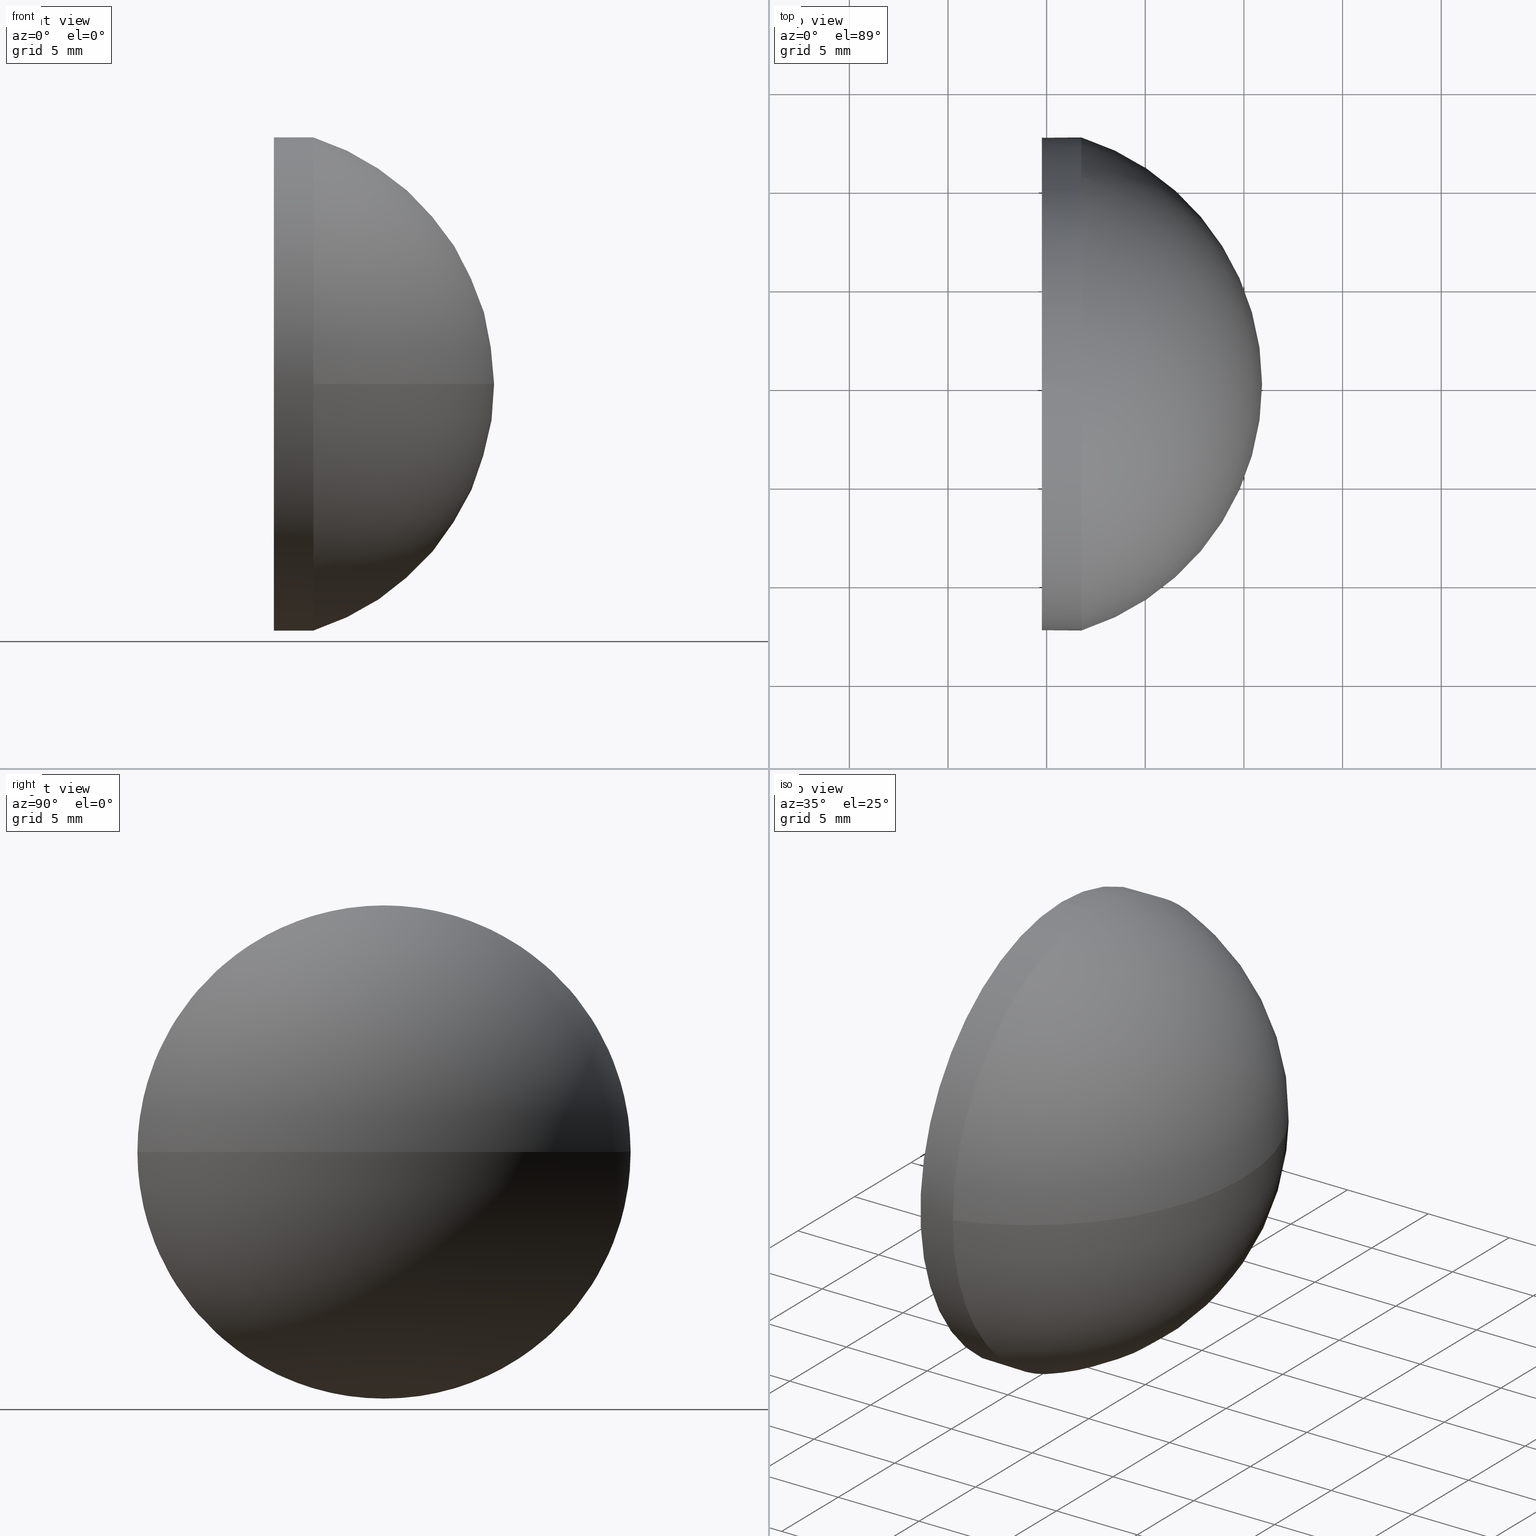
[diagram: canonical four-view strip — front | top / right | iso, engineering-drawing reading convention]
A machine part, canonical four-view strip (front | top / right | iso — engineering-drawing reading convention). The complete STEP part file that produces these views, byte-faithful:
ISO-10303-21;
HEADER;
FILE_DESCRIPTION (( 'STEP AP214' ),
    '1' );
FILE_NAME ('100208.STEP',
    '2019-05-23T06:54:28',
    ( '' ),
    ( '' ),
    'SwSTEP 2.0',
    'SolidWorks 2016',
    '' );
FILE_SCHEMA (( 'AUTOMOTIVE_DESIGN' ));
ENDSEC;

DATA;
#1 = AXIS2_PLACEMENT_3D ( 'NONE', #102, #101, #28 ) ;
#2 = CIRCLE ( 'NONE', #84, 13.10893013100433700 ) ;
#3 = ORIENTED_EDGE ( 'NONE', *, *, #18, .F. ) ;
#4 = ORIENTED_EDGE ( 'NONE', *, *, #62, .T. ) ;
#5 = CARTESIAN_POINT ( 'NONE',  ( 507.8113059585240900, 5.104111790186718300, 0.0000000000000000000 ) ) ;
#6 = AXIS2_PLACEMENT_3D ( 'NONE', #166, #80, #110 ) ;
#7 = EDGE_LOOP ( 'NONE', ( #185, #114, #81, #69 ) ) ;
#8 = CARTESIAN_POINT ( 'NONE',  ( 511.7602360895284600, 5.104111790186721000, 0.0000000000000000000 ) ) ;
#9 = FILL_AREA_STYLE ('',( #106 ) ) ;
#10 = SURFACE_SIDE_STYLE ('',( #24 ) ) ;
#11 = ORIENTED_EDGE ( 'NONE', *, *, #85, .T. ) ;
#12 = AXIS2_PLACEMENT_3D ( 'NONE', #63, #108, #20 ) ;
#13 = VERTEX_POINT ( 'NONE', #160 ) ;
#14 = AXIS2_PLACEMENT_3D ( 'NONE', #72, #105, #71 ) ;
#15 = PRESENTATION_LAYER_ASSIGNMENT (  '', '', ( #36 ) ) ;
#16 = CARTESIAN_POINT ( 'NONE',  ( 507.7311285110914700, 5.104111790186721000, 0.0000000000000000000 ) ) ;
#17 = DIRECTION ( 'NONE',  ( 0.0000000000000000000, 0.0000000000000000000, 1.000000000000000000 ) ) ;
#18 = EDGE_CURVE ( 'NONE', #48, #75, #171, .T. ) ;
#19 = DIRECTION ( 'NONE',  ( -1.000000000000000000, -0.0000000000000000000, -0.0000000000000000000 ) ) ;
#20 = DIRECTION ( 'NONE',  ( 1.000000000000000000, 0.0000000000000000000, 0.0000000000000000000 ) ) ;
#21 = CARTESIAN_POINT ( 'NONE',  ( 507.7311285110914700, 5.104111790186722800, -12.49999999999999800 ) ) ;
#22 = PRESENTATION_LAYER_ASSIGNMENT (  '', '', ( #159 ) ) ;
#23 = CIRCLE ( 'NONE', #98, 12.49999999999999800 ) ;
#24 = SURFACE_STYLE_FILL_AREA ( #9 ) ;
#25 = AXIS2_PLACEMENT_3D ( 'NONE', #178, #19, #17 ) ;
#26 = DIRECTION ( 'NONE',  ( -1.000000000000000000, -0.0000000000000000000, -0.0000000000000000000 ) ) ;
#27 = DIRECTION ( 'NONE',  ( -1.000000000000000000, -0.0000000000000000000, -0.0000000000000000000 ) ) ;
#28 = DIRECTION ( 'NONE',  ( 0.0000000000000000000, 0.0000000000000000000, 1.000000000000000000 ) ) ;
#29 = CARTESIAN_POINT ( 'NONE',  ( 520.9202360895284300, 5.104111790186719200, 0.0000000000000000000 ) ) ;
#30 = DIRECTION ( 'NONE',  ( 0.0000000000000000000, 0.0000000000000000000, 1.000000000000000000 ) ) ;
#31 = FACE_OUTER_BOUND ( 'NONE', #107, .T. ) ;
#32 = FILL_AREA_STYLE_COLOUR ( '', #79 ) ;
#33 = DIRECTION ( 'NONE',  ( 0.0000000000000000000, 0.0000000000000000000, 1.000000000000000000 ) ) ;
#34 = ORIENTED_EDGE ( 'NONE', *, *, #184, .T. ) ;
#35 = EDGE_LOOP ( 'NONE', ( #95, #158, #82, #11, #111 ) ) ;
#36 = STYLED_ITEM ( 'NONE', ( #127 ), #112 ) ;
#37 = VERTEX_POINT ( 'NONE', #29 ) ;
#38 = ADVANCED_FACE ( 'NONE', ( #92 ), #88, .F. ) ;
#39 = DIRECTION ( 'NONE',  ( 0.0000000000000000000, 0.0000000000000000000, -1.000000000000000000 ) ) ;
#40 = ADVANCED_FACE ( 'NONE', ( #147 ), #66, .T. ) ;
#41 = ORIENTED_EDGE ( 'NONE', *, *, #77, .F. ) ;
#42 = CARTESIAN_POINT ( 'NONE',  ( 511.7602360895284600, 5.104111790186722800, -12.49999999999999800 ) ) ;
#43 = CIRCLE ( 'NONE', #173, 12.49999999999999800 ) ;
#44 = DIRECTION ( 'NONE',  ( 1.000000000000000000, 0.0000000000000000000, 0.0000000000000000000 ) ) ;
#45 =( NAMED_UNIT ( * ) SI_UNIT ( $, .STERADIAN. ) SOLID_ANGLE_UNIT ( ) );
#46 = DIRECTION ( 'NONE',  ( -1.000000000000000000, -0.0000000000000000000, -0.0000000000000000000 ) ) ;
#47 = DIRECTION ( 'NONE',  ( -1.000000000000000000, -0.0000000000000000000, -0.0000000000000000000 ) ) ;
#48 = VERTEX_POINT ( 'NONE', #42 ) ;
#49 = CARTESIAN_POINT ( 'NONE',  ( 511.7602360895284600, 17.60411179018671000, 0.0000000000000000000 ) ) ;
#50 = FACE_OUTER_BOUND ( 'NONE', #35, .T. ) ;
#51 = CYLINDRICAL_SURFACE ( 'NONE', #67, 12.49999999999999800 ) ;
#52 = CIRCLE ( 'NONE', #96, 12.49999999999999800 ) ;
#53 = VECTOR ( 'NONE', #26, 1000.000000000000000 ) ;
#54 = ADVANCED_FACE ( 'NONE', ( #31 ), #117, .T. ) ;
#55 = DIRECTION ( 'NONE',  ( -0.0000000000000000000, 0.0000000000000000000, -1.000000000000000000 ) ) ;
#56 = DIRECTION ( 'NONE',  ( 0.0000000000000000000, 0.0000000000000000000, 1.000000000000000000 ) ) ;
#57 =( GEOMETRIC_REPRESENTATION_CONTEXT ( 3 ) GLOBAL_UNCERTAINTY_ASSIGNED_CONTEXT ( ( #83 ) ) GLOBAL_UNIT_ASSIGNED_CONTEXT ( ( #120, #138, #179 ) ) REPRESENTATION_CONTEXT ( 'NONE', 'WORKASPACE' ) );
#58 =( LENGTH_UNIT ( ) NAMED_UNIT ( * ) SI_UNIT ( .MILLI., .METRE. ) );
#59 = APPLICATION_CONTEXT ( 'automotive_design' ) ;
#60 = ORIENTED_EDGE ( 'NONE', *, *, #157, .T. ) ;
#61 = APPLICATION_CONTEXT ( 'automotive_design' ) ;
#62 = EDGE_CURVE ( 'NONE', #86, #176, #123, .T. ) ;
#63 = CARTESIAN_POINT ( 'NONE',  ( 0.0000000000000000000, 0.0000000000000000000, 0.0000000000000000000 ) ) ;
#64 = AXIS2_PLACEMENT_3D ( 'NONE', #94, #181, #118 ) ;
#65 = SHAPE_DEFINITION_REPRESENTATION ( #109, #112 ) ;
#66 = SPHERICAL_SURFACE ( 'NONE', #141, 13.10893013100435700 ) ;
#67 = AXIS2_PLACEMENT_3D ( 'NONE', #16, #27, #56 ) ;
#68 = CYLINDRICAL_SURFACE ( 'NONE', #64, 12.49999999999999800 ) ;
#69 = ORIENTED_EDGE ( 'NONE', *, *, #115, .F. ) ;
#70 = PRODUCT_RELATED_PRODUCT_CATEGORY ( 'part', '', ( #133 ) ) ;
#71 = DIRECTION ( 'NONE',  ( 0.0000000000000000000, 1.000000000000000000, 0.0000000000000000000 ) ) ;
#72 = CARTESIAN_POINT ( 'NONE',  ( 507.8113059585240900, 5.104111790186718300, 0.0000000000000000000 ) ) ;
#73 =( GEOMETRIC_REPRESENTATION_CONTEXT ( 3 ) GLOBAL_UNCERTAINTY_ASSIGNED_CONTEXT ( ( #126 ) ) GLOBAL_UNIT_ASSIGNED_CONTEXT ( ( #58, #74, #45 ) ) REPRESENTATION_CONTEXT ( 'NONE', 'WORKASPACE' ) );
#74 =( NAMED_UNIT ( * ) PLANE_ANGLE_UNIT ( ) SI_UNIT ( $, .RADIAN. ) );
#75 = VERTEX_POINT ( 'NONE', #132 ) ;
#76 = APPLICATION_PROTOCOL_DEFINITION ( 'draft international standard', 'automotive_design', 1998, #59 ) ;
#77 = EDGE_CURVE ( 'NONE', #125, #48, #23, .T. ) ;
#78 = FILL_AREA_STYLE ('',( #32 ) ) ;
#79 = COLOUR_RGB ( '',1.000000000000000000, 1.000000000000000000, 1.000000000000000000 ) ;
#80 = DIRECTION ( 'NONE',  ( 0.0000000000000000000, 1.224646799147353200E-016, -1.000000000000000000 ) ) ;
#81 = ORIENTED_EDGE ( 'NONE', *, *, #136, .F. ) ;
#82 = ORIENTED_EDGE ( 'NONE', *, *, #115, .T. ) ;
#83 = UNCERTAINTY_MEASURE_WITH_UNIT (LENGTH_MEASURE( 1.000000000000000100E-005 ), #120, 'distance_accuracy_value', 'NONE');
#84 = AXIS2_PLACEMENT_3D ( 'NONE', #183, #93, #44 ) ;
#85 = EDGE_CURVE ( 'NONE', #13, #86, #135, .T. ) ;
#86 = VERTEX_POINT ( 'NONE', #89 ) ;
#87 = DIRECTION ( 'NONE',  ( 1.000000000000000000, 0.0000000000000000000, 0.0000000000000000000 ) ) ;
#88 = PLANE ( 'NONE',  #124 ) ;
#89 = CARTESIAN_POINT ( 'NONE',  ( 509.7602360895284600, 5.104111790186721000, 12.49999999999999800 ) ) ;
#90 = PRESENTATION_STYLE_ASSIGNMENT (( #134 ) ) ;
#91 =( NAMED_UNIT ( * ) SI_UNIT ( $, .STERADIAN. ) SOLID_ANGLE_UNIT ( ) );
#92 = FACE_OUTER_BOUND ( 'NONE', #140, .T. ) ;
#93 = DIRECTION ( 'NONE',  ( -0.0000000000000000000, 0.0000000000000000000, 1.000000000000000000 ) ) ;
#94 = CARTESIAN_POINT ( 'NONE',  ( 507.7311285110914700, 5.104111790186721000, 0.0000000000000000000 ) ) ;
#95 = ORIENTED_EDGE ( 'NONE', *, *, #170, .F. ) ;
#96 = AXIS2_PLACEMENT_3D ( 'NONE', #163, #47, #30 ) ;
#97 = PRODUCT_DEFINITION_FORMATION_WITH_SPECIFIED_SOURCE ( '�κ�', '', #133, .NOT_KNOWN. ) ;
#98 = AXIS2_PLACEMENT_3D ( 'NONE', #130, #116, #161 ) ;
#99 = ORIENTED_EDGE ( 'NONE', *, *, #62, .F. ) ;
#100 = FACE_OUTER_BOUND ( 'NONE', #129, .T. ) ;
#101 = DIRECTION ( 'NONE',  ( -1.000000000000000000, -0.0000000000000000000, -0.0000000000000000000 ) ) ;
#102 = CARTESIAN_POINT ( 'NONE',  ( 511.7602360895284600, 5.104111790186721000, 0.0000000000000000000 ) ) ;
#103 = ADVANCED_FACE ( 'NONE', ( #100 ), #51, .T. ) ;
#104 = CARTESIAN_POINT ( 'NONE',  ( 507.7311285110914700, 5.104111790186721000, 12.49999999999999800 ) ) ;
#105 = DIRECTION ( 'NONE',  ( -0.0000000000000000000, 0.0000000000000000000, -1.000000000000000000 ) ) ;
#106 = FILL_AREA_STYLE_COLOUR ( '', #174 ) ;
#107 = EDGE_LOOP ( 'NONE', ( #162, #34, #3, #41 ) ) ;
#108 = DIRECTION ( 'NONE',  ( 0.0000000000000000000, 0.0000000000000000000, 1.000000000000000000 ) ) ;
#109 = PRODUCT_DEFINITION_SHAPE ( 'NONE', 'NONE',  #154 ) ;
#110 = DIRECTION ( 'NONE',  ( 0.0000000000000000000, 1.000000000000000000, 1.224646799147353200E-016 ) ) ;
#111 = ORIENTED_EDGE ( 'NONE', *, *, #157, .F. ) ;
#112 = ADVANCED_BREP_SHAPE_REPRESENTATION ( '100208', ( #142, #12 ), #131 ) ;
#113 = SURFACE_STYLE_FILL_AREA ( #78 ) ;
#114 = ORIENTED_EDGE ( 'NONE', *, *, #145, .T. ) ;
#115 = EDGE_CURVE ( 'NONE', #75, #13, #128, .T. ) ;
#116 = DIRECTION ( 'NONE',  ( -1.000000000000000000, -0.0000000000000000000, -0.0000000000000000000 ) ) ;
#117 = SPHERICAL_SURFACE ( 'NONE', #14, 13.10893013100435700 ) ;
#118 = DIRECTION ( 'NONE',  ( 0.0000000000000000000, 0.0000000000000000000, 1.000000000000000000 ) ) ;
#119 = PRODUCT_CONTEXT ( 'NONE', #59, 'mechanical' ) ;
#120 =( LENGTH_UNIT ( ) NAMED_UNIT ( * ) SI_UNIT ( .MILLI., .METRE. ) );
#121 = CARTESIAN_POINT ( 'NONE',  ( 509.7602360895284600, 5.104111790186722800, -12.49999999999999800 ) ) ;
#122 = PRODUCT_DEFINITION_CONTEXT ( 'detailed design', #61, 'design' ) ;
#123 = CIRCLE ( 'NONE', #25, 12.49999999999999800 ) ;
#124 = AXIS2_PLACEMENT_3D ( 'NONE', #177, #87, #39 ) ;
#125 = VERTEX_POINT ( 'NONE', #49 ) ;
#126 = UNCERTAINTY_MEASURE_WITH_UNIT (LENGTH_MEASURE( 1.000000000000000100E-005 ), #58, 'distance_accuracy_value', 'NONE');
#127 = PRESENTATION_STYLE_ASSIGNMENT (( #150 ) ) ;
#128 = CIRCLE ( 'NONE', #172, 12.49999999999999800 ) ;
#129 = EDGE_LOOP ( 'NONE', ( #155, #180, #99, #165, #153 ) ) ;
#130 = CARTESIAN_POINT ( 'NONE',  ( 511.7602360895284600, 5.104111790186721000, 0.0000000000000000000 ) ) ;
#131 =( GEOMETRIC_REPRESENTATION_CONTEXT ( 3 ) GLOBAL_UNCERTAINTY_ASSIGNED_CONTEXT ( ( #156 ) ) GLOBAL_UNIT_ASSIGNED_CONTEXT ( ( #148, #146, #91 ) ) REPRESENTATION_CONTEXT ( 'NONE', 'WORKASPACE' ) );
#132 = CARTESIAN_POINT ( 'NONE',  ( 511.7602360895284600, -7.395888209813271000, -1.530808498934190100E-015 ) ) ;
#133 = PRODUCT ( '100208', '100208', '', ( #119 ) ) ;
#134 = SURFACE_STYLE_USAGE ( .BOTH. , #152 ) ;
#135 = LINE ( 'NONE', #104, #53 ) ;
#136 = EDGE_CURVE ( 'NONE', #13, #125, #43, .T. ) ;
#137 = DIRECTION ( 'NONE',  ( -1.000000000000000000, -0.0000000000000000000, -0.0000000000000000000 ) ) ;
#138 =( NAMED_UNIT ( * ) PLANE_ANGLE_UNIT ( ) SI_UNIT ( $, .RADIAN. ) );
#139 = CLOSED_SHELL ( 'NONE', ( #103, #54, #40, #149, #38 ) ) ;
#140 = EDGE_LOOP ( 'NONE', ( #4, #60 ) ) ;
#141 = AXIS2_PLACEMENT_3D ( 'NONE', #5, #55, #144 ) ;
#142 = MANIFOLD_SOLID_BREP ( '��ת1', #139 ) ;
#143 = CIRCLE ( 'NONE', #6, 13.10893013100435500 ) ;
#144 = DIRECTION ( 'NONE',  ( 0.0000000000000000000, 1.000000000000000000, 0.0000000000000000000 ) ) ;
#145 = EDGE_CURVE ( 'NONE', #37, #125, #2, .T. ) ;
#146 =( NAMED_UNIT ( * ) PLANE_ANGLE_UNIT ( ) SI_UNIT ( $, .RADIAN. ) );
#147 = FACE_OUTER_BOUND ( 'NONE', #7, .T. ) ;
#148 =( LENGTH_UNIT ( ) NAMED_UNIT ( * ) SI_UNIT ( .MILLI., .METRE. ) );
#149 = ADVANCED_FACE ( 'NONE', ( #50 ), #68, .T. ) ;
#150 = SURFACE_STYLE_USAGE ( .BOTH. , #10 ) ;
#151 = CARTESIAN_POINT ( 'NONE',  ( 511.7602360895284600, 5.104111790186721000, 0.0000000000000000000 ) ) ;
#152 = SURFACE_SIDE_STYLE ('',( #113 ) ) ;
#153 = ORIENTED_EDGE ( 'NONE', *, *, #136, .T. ) ;
#154 = PRODUCT_DEFINITION ( 'δ֪', '', #97, #122 ) ;
#155 = ORIENTED_EDGE ( 'NONE', *, *, #77, .T. ) ;
#156 = UNCERTAINTY_MEASURE_WITH_UNIT (LENGTH_MEASURE( 1.000000000000000100E-005 ), #148, 'distance_accuracy_value', 'NONE');
#157 = EDGE_CURVE ( 'NONE', #176, #86, #52, .T. ) ;
#158 = ORIENTED_EDGE ( 'NONE', *, *, #18, .T. ) ;
#159 = STYLED_ITEM ( 'NONE', ( #90 ), #142 ) ;
#160 = CARTESIAN_POINT ( 'NONE',  ( 511.7602360895284600, 5.104111790186721000, 12.49999999999999800 ) ) ;
#161 = DIRECTION ( 'NONE',  ( 0.0000000000000000000, 0.0000000000000000000, 1.000000000000000000 ) ) ;
#162 = ORIENTED_EDGE ( 'NONE', *, *, #145, .F. ) ;
#163 = CARTESIAN_POINT ( 'NONE',  ( 509.7602360895284600, 5.104111790186721000, 0.0000000000000000000 ) ) ;
#164 = MECHANICAL_DESIGN_GEOMETRIC_PRESENTATION_REPRESENTATION (  '', ( #36 ), #57 ) ;
#165 = ORIENTED_EDGE ( 'NONE', *, *, #85, .F. ) ;
#166 = CARTESIAN_POINT ( 'NONE',  ( 507.8113059585240900, 5.104111790186718300, 0.0000000000000000000 ) ) ;
#167 = DIRECTION ( 'NONE',  ( 0.0000000000000000000, 0.0000000000000000000, 1.000000000000000000 ) ) ;
#168 = MECHANICAL_DESIGN_GEOMETRIC_PRESENTATION_REPRESENTATION (  '', ( #159 ), #73 ) ;
#169 = LINE ( 'NONE', #21, #175 ) ;
#170 = EDGE_CURVE ( 'NONE', #48, #176, #169, .T. ) ;
#171 = CIRCLE ( 'NONE', #1, 12.49999999999999800 ) ;
#172 = AXIS2_PLACEMENT_3D ( 'NONE', #151, #137, #33 ) ;
#173 = AXIS2_PLACEMENT_3D ( 'NONE', #8, #46, #167 ) ;
#174 = COLOUR_RGB ( '',1.000000000000000000, 1.000000000000000000, 1.000000000000000000 ) ;
#175 = VECTOR ( 'NONE', #182, 1000.000000000000000 ) ;
#176 = VERTEX_POINT ( 'NONE', #121 ) ;
#177 = CARTESIAN_POINT ( 'NONE',  ( 509.7602360895284600, 5.104111790186721000, 0.0000000000000000000 ) ) ;
#178 = CARTESIAN_POINT ( 'NONE',  ( 509.7602360895284600, 5.104111790186721000, 0.0000000000000000000 ) ) ;
#179 =( NAMED_UNIT ( * ) SI_UNIT ( $, .STERADIAN. ) SOLID_ANGLE_UNIT ( ) );
#180 = ORIENTED_EDGE ( 'NONE', *, *, #170, .T. ) ;
#181 = DIRECTION ( 'NONE',  ( -1.000000000000000000, -0.0000000000000000000, -0.0000000000000000000 ) ) ;
#182 = DIRECTION ( 'NONE',  ( -1.000000000000000000, -0.0000000000000000000, -0.0000000000000000000 ) ) ;
#183 = CARTESIAN_POINT ( 'NONE',  ( 507.8113059585240900, 5.104111790186718300, 0.0000000000000000000 ) ) ;
#184 = EDGE_CURVE ( 'NONE', #37, #75, #143, .T. ) ;
#185 = ORIENTED_EDGE ( 'NONE', *, *, #184, .F. ) ;
#186 = APPLICATION_PROTOCOL_DEFINITION ( 'draft international standard', 'automotive_design', 1998, #61 ) ;
ENDSEC;
END-ISO-10303-21;
